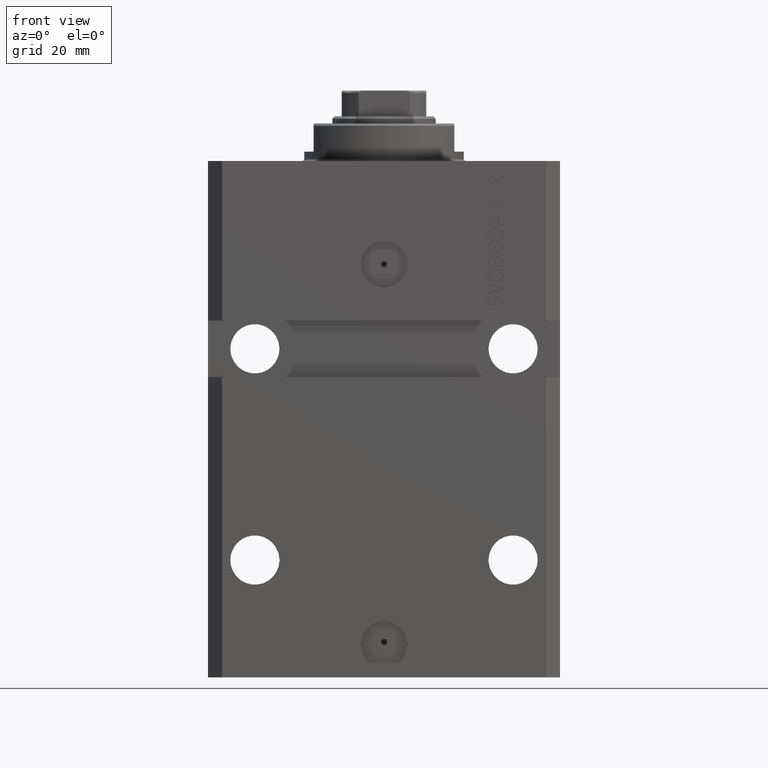
[diagram: clean part render]
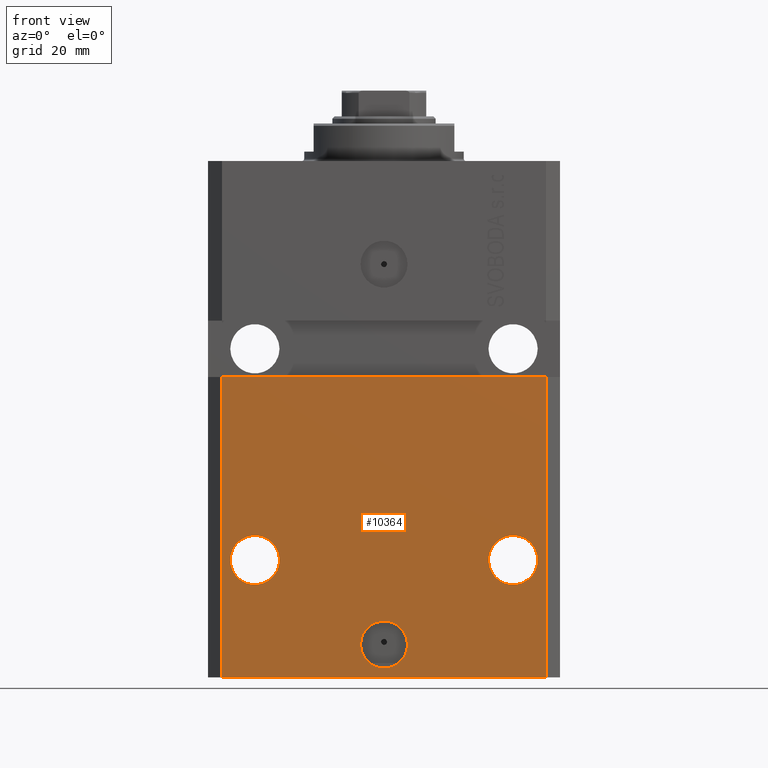
[diagram: same view with one face highlighted and labeled with its STEP entity id]
A machine part, front view. The second image highlights one B-rep face of the part: STEP entity #10364.
In plain terms, the highlighted planar face has unit normal (0, -1, 0).
Its self-contained STEP definition (entity closure, byte-faithful):
#71 = EDGE_CURVE ( 'NONE', #27434, #39703, #20944, .T. ) ;
#179 = CARTESIAN_POINT ( 'NONE',  ( 22.25000000000002132, -27.49999999999999289, -84.99999999999998579 ) ) ;
#1441 = DIRECTION ( 'NONE',  ( 1.000000000000000000, 0.000000000000000000, 0.000000000000000000 ) ) ;
#1502 = AXIS2_PLACEMENT_3D ( 'NONE', #20854, #3485, #41395 ) ;
#2134 = LINE ( 'NONE', #16332, #35694 ) ;
#3465 = VECTOR ( 'NONE', #31839, 1000.000000000000000 ) ;
#3485 = DIRECTION ( 'NONE',  ( 1.176083712526788232E-16, -1.000000000000000000, 0.000000000000000000 ) ) ;
#3889 = AXIS2_PLACEMENT_3D ( 'NONE', #35736, #18364, #1441 ) ;
#4209 = VERTEX_POINT ( 'NONE', #19581 ) ;
#4765 = ORIENTED_EDGE ( 'NONE', *, *, #40127, .F. ) ;
#4797 = VECTOR ( 'NONE', #38340, 1000.000000000000000 ) ;
#4808 = EDGE_CURVE ( 'NONE', #9868, #15331, #39006, .T. ) ;
#5106 = DIRECTION ( 'NONE',  ( 1.176083712526788232E-16, -1.000000000000000000, 0.000000000000000000 ) ) ;
#5366 = FACE_BOUND ( 'NONE', #39832, .T. ) ;
#6347 = ORIENTED_EDGE ( 'NONE', *, *, #7562, .T. ) ;
#6520 = ORIENTED_EDGE ( 'NONE', *, *, #17916, .F. ) ;
#6532 = DIRECTION ( 'NONE',  ( 1.176083712526788232E-16, -1.000000000000000000, 0.000000000000000000 ) ) ;
#7562 = EDGE_CURVE ( 'NONE', #13393, #43316, #19309, .T. ) ;
#8202 = CIRCLE ( 'NONE', #34158, 5.249999999999994671 ) ;
#8979 = FACE_BOUND ( 'NONE', #12087, .T. ) ;
#9705 = ORIENTED_EDGE ( 'NONE', *, *, #25246, .F. ) ;
#9868 = VERTEX_POINT ( 'NONE', #37813 ) ;
#9919 = CARTESIAN_POINT ( 'NONE',  ( -27.50000000000001421, -27.50000000000000000, -84.99999999999998579 ) ) ;
#10364 = ADVANCED_FACE ( 'NONE', ( #8979, #25676, #5366, #43286 ), #22502, .T. ) ;
#10594 = CARTESIAN_POINT ( 'NONE',  ( 27.50000000000001421, -27.49999999999999289, -84.99999999999998579 ) ) ;
#11971 = EDGE_CURVE ( 'NONE', #4209, #27534, #13248, .T. ) ;
#12087 = EDGE_LOOP ( 'NONE', ( #14618, #12353 ) ) ;
#12353 = ORIENTED_EDGE ( 'NONE', *, *, #71, .F. ) ;
#13199 = DIRECTION ( 'NONE',  ( 0.000000000000000000, 0.000000000000000000, 1.000000000000000000 ) ) ;
#13248 = CIRCLE ( 'NONE', #3889, 5.249999999999994671 ) ;
#13261 = CARTESIAN_POINT ( 'NONE',  ( 34.49999999999999289, -27.49999999999999289, -46.00000000000000711 ) ) ;
#13333 = CARTESIAN_POINT ( 'NONE',  ( -5.000000000000006217, -27.49999999999999645, -103.0000000000000000 ) ) ;
#13374 = CARTESIAN_POINT ( 'NONE',  ( -27.50000000000001421, -27.50000000000000000, -84.99999999999998579 ) ) ;
#13393 = VERTEX_POINT ( 'NONE', #34060 ) ;
#14618 = ORIENTED_EDGE ( 'NONE', *, *, #35409, .F. ) ;
#15076 = DIRECTION ( 'NONE',  ( 0.000000000000000000, -1.000000000000000000, 0.000000000000000000 ) ) ;
#15331 = VERTEX_POINT ( 'NONE', #20824 ) ;
#16332 = CARTESIAN_POINT ( 'NONE',  ( -37.50000000000000000, -27.50000000000000000, -46.00000000000000000 ) ) ;
#17529 = VERTEX_POINT ( 'NONE', #30923 ) ;
#17846 = LINE ( 'NONE', #27989, #3465 ) ;
#17916 = EDGE_CURVE ( 'NONE', #17529, #43316, #2134, .T. ) ;
#18130 = ORIENTED_EDGE ( 'NONE', *, *, #36207, .T. ) ;
#18364 = DIRECTION ( 'NONE',  ( 1.176083712526788232E-16, -1.000000000000000000, 0.000000000000000000 ) ) ;
#18829 = DIRECTION ( 'NONE',  ( 1.000000000000000000, 9.251858538542972814E-17, -9.251858538542972814E-17 ) ) ;
#19309 = LINE ( 'NONE', #22911, #34763 ) ;
#19581 = CARTESIAN_POINT ( 'NONE',  ( 32.75000000000000711, -27.49999999999999289, -84.99999999999998579 ) ) ;
#19617 = DIRECTION ( 'NONE',  ( -1.000000000000000000, 0.000000000000000000, 0.000000000000000000 ) ) ;
#20058 = CIRCLE ( 'NONE', #31595, 5.249999999999994671 ) ;
#20824 = CARTESIAN_POINT ( 'NONE',  ( -22.25000000000002132, -27.50000000000000000, -84.99999999999998579 ) ) ;
#20854 = CARTESIAN_POINT ( 'NONE',  ( 0.000000000000000000, -27.49999999999999645, -103.0000000000000000 ) ) ;
#20944 = CIRCLE ( 'NONE', #1502, 5.000000000000006217 ) ;
#22041 = AXIS2_PLACEMENT_3D ( 'NONE', #36017, #5106, #32637 ) ;
#22502 = PLANE ( 'NONE',  #39138 ) ;
#22911 = CARTESIAN_POINT ( 'NONE',  ( 34.49999999999999289, -27.49999999999999645, -110.0000000000000000 ) ) ;
#24565 = CARTESIAN_POINT ( 'NONE',  ( -34.49999999999998579, -27.49999999999999645, -110.0000000000000000 ) ) ;
#24893 = ORIENTED_EDGE ( 'NONE', *, *, #11971, .F. ) ;
#25246 = EDGE_CURVE ( 'NONE', #27534, #4209, #8202, .T. ) ;
#25676 = FACE_BOUND ( 'NONE', #41863, .T. ) ;
#26314 = ORIENTED_EDGE ( 'NONE', *, *, #4808, .F. ) ;
#27434 = VERTEX_POINT ( 'NONE', #13333 ) ;
#27534 = VERTEX_POINT ( 'NONE', #179 ) ;
#27989 = CARTESIAN_POINT ( 'NONE',  ( -34.49999999999998579, -27.49999999999999645, -110.0000000000000000 ) ) ;
#28419 = CARTESIAN_POINT ( 'NONE',  ( -34.49999999999998579, -27.49999999999999645, -110.0000000000000000 ) ) ;
#28555 = CIRCLE ( 'NONE', #22041, 5.000000000000006217 ) ;
#29727 = DIRECTION ( 'NONE',  ( 0.000000000000000000, -0.000000000000000000, -1.000000000000000000 ) ) ;
#30774 = CARTESIAN_POINT ( 'NONE',  ( 5.000000000000006217, -27.49999999999999645, -103.0000000000000000 ) ) ;
#30923 = CARTESIAN_POINT ( 'NONE',  ( -34.49999999999998579, -27.50000000000000000, -46.00000000000000000 ) ) ;
#31584 = LINE ( 'NONE', #24565, #4797 ) ;
#31595 = AXIS2_PLACEMENT_3D ( 'NONE', #9919, #6532, #19617 ) ;
#31839 = DIRECTION ( 'NONE',  ( 0.000000000000000000, 0.000000000000000000, 1.000000000000000000 ) ) ;
#32637 = DIRECTION ( 'NONE',  ( 1.000000000000000000, 0.000000000000000000, 0.000000000000000000 ) ) ;
#33949 = AXIS2_PLACEMENT_3D ( 'NONE', #13374, #39787, #40235 ) ;
#34060 = CARTESIAN_POINT ( 'NONE',  ( 34.49999999999999289, -27.49999999999999645, -110.0000000000000000 ) ) ;
#34158 = AXIS2_PLACEMENT_3D ( 'NONE', #10594, #37453, #44681 ) ;
#34763 = VECTOR ( 'NONE', #13199, 1000.000000000000000 ) ;
#35380 = ORIENTED_EDGE ( 'NONE', *, *, #41102, .F. ) ;
#35409 = EDGE_CURVE ( 'NONE', #39703, #27434, #28555, .T. ) ;
#35694 = VECTOR ( 'NONE', #18829, 1000.000000000000000 ) ;
#35736 = CARTESIAN_POINT ( 'NONE',  ( 27.50000000000001421, -27.49999999999999289, -84.99999999999998579 ) ) ;
#36017 = CARTESIAN_POINT ( 'NONE',  ( 0.000000000000000000, -27.49999999999999645, -103.0000000000000000 ) ) ;
#36207 = EDGE_CURVE ( 'NONE', #39307, #13393, #31584, .T. ) ;
#37453 = DIRECTION ( 'NONE',  ( 1.176083712526788232E-16, -1.000000000000000000, 0.000000000000000000 ) ) ;
#37813 = CARTESIAN_POINT ( 'NONE',  ( -32.75000000000000711, -27.50000000000000000, -84.99999999999998579 ) ) ;
#38340 = DIRECTION ( 'NONE',  ( 1.000000000000000000, 0.000000000000000000, 0.000000000000000000 ) ) ;
#39006 = CIRCLE ( 'NONE', #33949, 5.249999999999994671 ) ;
#39138 = AXIS2_PLACEMENT_3D ( 'NONE', #43067, #15076, #29727 ) ;
#39307 = VERTEX_POINT ( 'NONE', #28419 ) ;
#39703 = VERTEX_POINT ( 'NONE', #30774 ) ;
#39787 = DIRECTION ( 'NONE',  ( 1.176083712526788232E-16, -1.000000000000000000, 0.000000000000000000 ) ) ;
#39832 = EDGE_LOOP ( 'NONE', ( #35380, #26314 ) ) ;
#40127 = EDGE_CURVE ( 'NONE', #39307, #17529, #17846, .T. ) ;
#40235 = DIRECTION ( 'NONE',  ( -1.000000000000000000, 0.000000000000000000, 0.000000000000000000 ) ) ;
#40863 = EDGE_LOOP ( 'NONE', ( #6520, #4765, #18130, #6347 ) ) ;
#41102 = EDGE_CURVE ( 'NONE', #15331, #9868, #20058, .T. ) ;
#41395 = DIRECTION ( 'NONE',  ( 1.000000000000000000, 0.000000000000000000, 0.000000000000000000 ) ) ;
#41863 = EDGE_LOOP ( 'NONE', ( #24893, #9705 ) ) ;
#43067 = CARTESIAN_POINT ( 'NONE',  ( -34.49999999999998579, -27.49999999999999645, -110.0000000000000000 ) ) ;
#43286 = FACE_OUTER_BOUND ( 'NONE', #40863, .T. ) ;
#43316 = VERTEX_POINT ( 'NONE', #13261 ) ;
#44681 = DIRECTION ( 'NONE',  ( 1.000000000000000000, 0.000000000000000000, 0.000000000000000000 ) ) ;